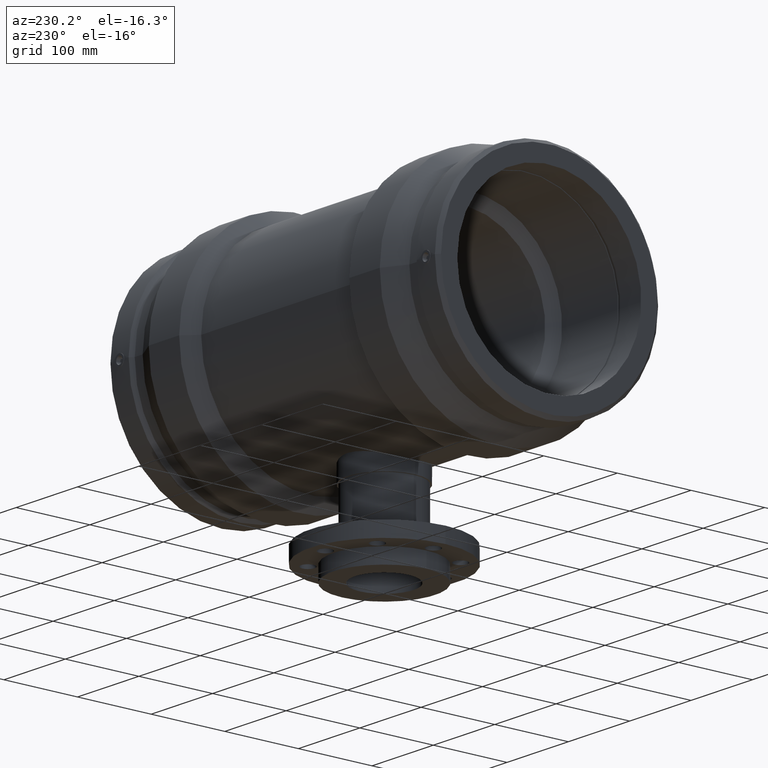
[diagram: clean part render]
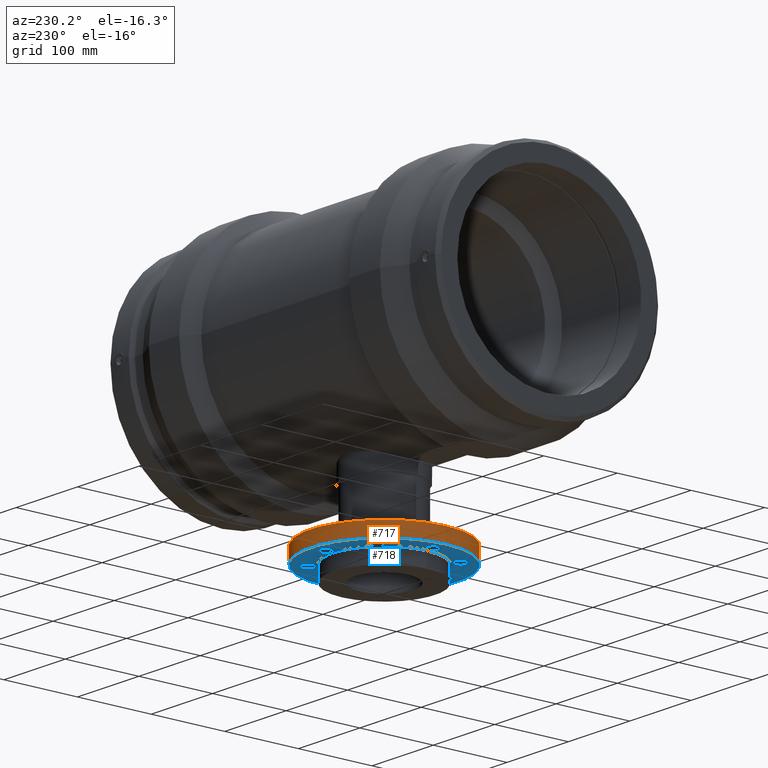
[diagram: same view with the hole feature highlighted: cylindrical wall and planar end face, labeled with their STEP entity ids]
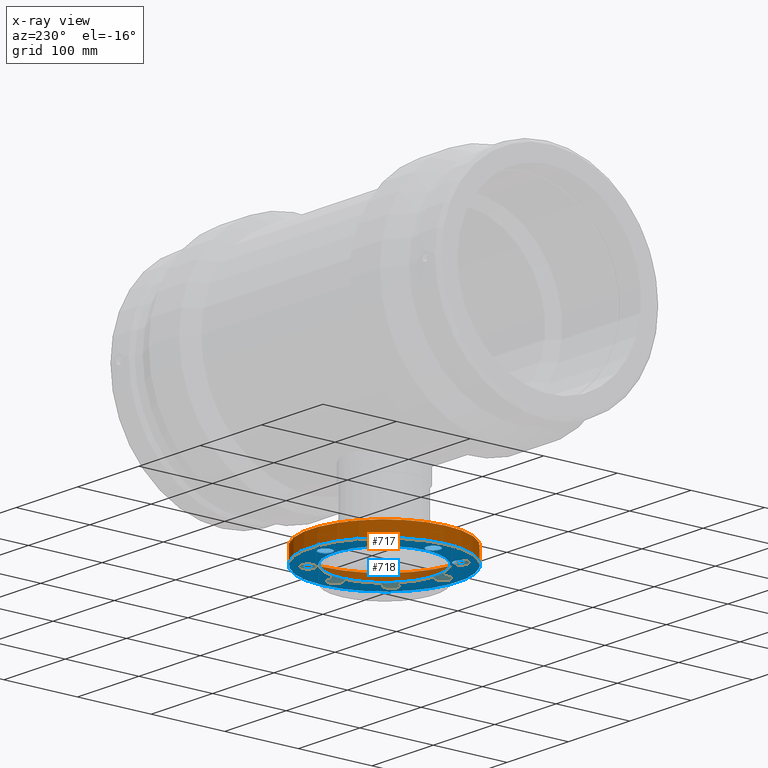
[diagram: x-ray of the same camera — body ghosted, the hole faces saturated]
A machine part, auxiliary view. The highlighted faces form one hole feature of diameter 200 mm: the cylindrical wall (entity #717, orange) and its adjacent planar end face (entity #718, blue) — they share a circular edge in the B-rep.
The next image is the same camera in x-ray (body ghosted, the hole faces saturated) — the bore reads through the body.
Wall:
#69=FACE_BOUND('',#319,.T.);
#145=CIRCLE('',#802,100.);
#146=CIRCLE('',#804,100.);
#198=CYLINDRICAL_SURFACE('',#803,100.);
#233=FACE_OUTER_BOUND('',#318,.T.);
#318=EDGE_LOOP('',(#604));
#319=EDGE_LOOP('',(#605));
#446=VERTEX_POINT('',#1534);
#447=VERTEX_POINT('',#1537);
#516=EDGE_CURVE('',#446,#446,#145,.T.);
#517=EDGE_CURVE('',#447,#447,#146,.T.);
#604=ORIENTED_EDGE('',*,*,#516,.T.);
#605=ORIENTED_EDGE('',*,*,#517,.F.);
#717=ADVANCED_FACE('',(#233,#69),#198,.T.);
#802=AXIS2_PLACEMENT_3D('',#1535,#969,#970);
#803=AXIS2_PLACEMENT_3D('',#1536,#971,#972);
#804=AXIS2_PLACEMENT_3D('',#1538,#973,#974);
#969=DIRECTION('center_axis',(-1.22464679914735E-16,0.,-1.));
#970=DIRECTION('ref_axis',(1.,0.,-1.22464679914735E-16));
#971=DIRECTION('center_axis',(-1.22464679914735E-16,0.,-1.));
#972=DIRECTION('ref_axis',(-1.,0.,0.));
#973=DIRECTION('center_axis',(-1.22464679914735E-16,0.,-1.));
#974=DIRECTION('ref_axis',(1.,0.,-1.22464679914735E-16));
#1534=CARTESIAN_POINT('',(-100.,0.,-230.));
#1535=CARTESIAN_POINT('Origin',(-2.81668763803891E-14,0.,-230.));
#1536=CARTESIAN_POINT('Origin',(-2.93915231795365E-14,0.,-240.));
#1537=CARTESIAN_POINT('',(-100.,0.,-250.));
#1538=CARTESIAN_POINT('Origin',(-3.06161699786838E-14,0.,-250.));
End face:
#33=PLANE('',#805);
#70=FACE_BOUND('',#321,.T.);
#71=FACE_BOUND('',#322,.T.);
#72=FACE_BOUND('',#323,.T.);
#73=FACE_BOUND('',#324,.T.);
#74=FACE_BOUND('',#325,.T.);
#75=FACE_BOUND('',#326,.T.);
#76=FACE_BOUND('',#327,.T.);
#77=FACE_BOUND('',#328,.T.);
#78=FACE_BOUND('',#329,.T.);
#122=CIRCLE('',#763,9.);
#124=CIRCLE('',#766,9.);
#126=CIRCLE('',#769,9.);
#128=CIRCLE('',#772,9.);
#130=CIRCLE('',#775,9.);
#132=CIRCLE('',#778,9.);
#134=CIRCLE('',#781,9.);
#136=CIRCLE('',#784,9.);
#143=CIRCLE('',#798,69.);
#146=CIRCLE('',#804,100.);
#234=FACE_OUTER_BOUND('',#320,.T.);
#320=EDGE_LOOP('',(#606));
#321=EDGE_LOOP('',(#607));
#322=EDGE_LOOP('',(#608));
#323=EDGE_LOOP('',(#609));
#324=EDGE_LOOP('',(#610));
#325=EDGE_LOOP('',(#611));
#326=EDGE_LOOP('',(#612));
#327=EDGE_LOOP('',(#613));
#328=EDGE_LOOP('',(#614));
#329=EDGE_LOOP('',(#615));
#422=VERTEX_POINT('',#1405);
#424=VERTEX_POINT('',#1410);
#426=VERTEX_POINT('',#1415);
#428=VERTEX_POINT('',#1420);
#430=VERTEX_POINT('',#1425);
#432=VERTEX_POINT('',#1430);
#434=VERTEX_POINT('',#1435);
#436=VERTEX_POINT('',#1440);
#444=VERTEX_POINT('',#1528);
#447=VERTEX_POINT('',#1537);
#492=EDGE_CURVE('',#422,#422,#122,.T.);
#494=EDGE_CURVE('',#424,#424,#124,.T.);
#496=EDGE_CURVE('',#426,#426,#126,.T.);
#498=EDGE_CURVE('',#428,#428,#128,.T.);
#500=EDGE_CURVE('',#430,#430,#130,.T.);
#502=EDGE_CURVE('',#432,#432,#132,.T.);
#504=EDGE_CURVE('',#434,#434,#134,.T.);
#506=EDGE_CURVE('',#436,#436,#136,.T.);
#514=EDGE_CURVE('',#444,#444,#143,.T.);
#517=EDGE_CURVE('',#447,#447,#146,.T.);
#606=ORIENTED_EDGE('',*,*,#517,.T.);
#607=ORIENTED_EDGE('',*,*,#492,.T.);
#608=ORIENTED_EDGE('',*,*,#494,.T.);
#609=ORIENTED_EDGE('',*,*,#496,.T.);
#610=ORIENTED_EDGE('',*,*,#498,.T.);
#611=ORIENTED_EDGE('',*,*,#500,.T.);
#612=ORIENTED_EDGE('',*,*,#502,.T.);
#613=ORIENTED_EDGE('',*,*,#504,.T.);
#614=ORIENTED_EDGE('',*,*,#506,.T.);
#615=ORIENTED_EDGE('',*,*,#514,.T.);
#718=ADVANCED_FACE('',(#234,#70,#71,#72,#73,#74,#75,#76,#77,#78),#33,.T.);
#763=AXIS2_PLACEMENT_3D('',#1406,#891,#892);
#766=AXIS2_PLACEMENT_3D('',#1411,#897,#898);
#769=AXIS2_PLACEMENT_3D('',#1416,#903,#904);
#772=AXIS2_PLACEMENT_3D('',#1421,#909,#910);
#775=AXIS2_PLACEMENT_3D('',#1426,#915,#916);
#778=AXIS2_PLACEMENT_3D('',#1431,#921,#922);
#781=AXIS2_PLACEMENT_3D('',#1436,#927,#928);
#784=AXIS2_PLACEMENT_3D('',#1441,#933,#934);
#798=AXIS2_PLACEMENT_3D('',#1529,#961,#962);
#804=AXIS2_PLACEMENT_3D('',#1538,#973,#974);
#805=AXIS2_PLACEMENT_3D('',#1539,#975,#976);
#891=DIRECTION('center_axis',(1.22464679914735E-16,0.,1.));
#892=DIRECTION('ref_axis',(0.707106781186547,0.707106781186548,0.));
#897=DIRECTION('center_axis',(1.22464679914735E-16,0.,1.));
#898=DIRECTION('ref_axis',(-1.2335811384724E-16,1.,0.));
#903=DIRECTION('center_axis',(1.22464679914735E-16,0.,1.));
#904=DIRECTION('ref_axis',(-0.707106781186548,0.707106781186547,0.));
#909=DIRECTION('center_axis',(1.22464679914735E-16,0.,1.));
#910=DIRECTION('ref_axis',(-1.,-1.2335811384724E-16,0.));
#915=DIRECTION('center_axis',(1.22464679914735E-16,0.,1.));
#916=DIRECTION('ref_axis',(-0.707106781186547,-0.707106781186548,0.));
#921=DIRECTION('center_axis',(1.22464679914735E-16,0.,1.));
#922=DIRECTION('ref_axis',(0.,-1.,0.));
#927=DIRECTION('center_axis',(1.22464679914735E-16,0.,1.));
#928=DIRECTION('ref_axis',(0.707106781186548,-0.707106781186547,0.));
#933=DIRECTION('center_axis',(1.22464679914735E-16,0.,1.));
#934=DIRECTION('ref_axis',(1.,0.,0.));
#961=DIRECTION('center_axis',(1.22464679914735E-16,0.,1.));
#962=DIRECTION('ref_axis',(-1.,0.,0.));
#973=DIRECTION('center_axis',(-1.22464679914735E-16,0.,-1.));
#974=DIRECTION('ref_axis',(1.,0.,-1.22464679914735E-16));
#975=DIRECTION('center_axis',(-1.22464679914735E-16,0.,-1.));
#976=DIRECTION('ref_axis',(-1.,0.,0.));
#1405=CARTESIAN_POINT('',(-62.9325035256027,-62.9325035256027,-250.));
#1406=CARTESIAN_POINT('Origin',(-56.5685424949238,-56.5685424949238,-250.));
#1410=CARTESIAN_POINT('',(-8.60857782988463E-15,-89.,-250.));
#1411=CARTESIAN_POINT('Origin',(-2.19312541253865E-14,-80.,-250.));
#1415=CARTESIAN_POINT('',(62.9325035256027,-62.9325035256027,-250.));
#1416=CARTESIAN_POINT('Origin',(56.5685424949238,-56.5685424949238,-250.));
#1420=CARTESIAN_POINT('',(89.,2.36259756353544E-14,-250.));
#1421=CARTESIAN_POINT('Origin',(80.,1.47441914383532E-14,-250.));
#1425=CARTESIAN_POINT('',(62.9325035256027,62.9325035256027,-250.));
#1426=CARTESIAN_POINT('Origin',(56.5685424949238,56.5685424949238,-250.));
#1430=CARTESIAN_POINT('',(-1.74903620268859E-14,89.,-250.));
#1431=CARTESIAN_POINT('Origin',(-2.63721462238871E-14,80.,-250.));
#1435=CARTESIAN_POINT('',(-62.9325035256028,62.9325035256027,-250.));
#1436=CARTESIAN_POINT('Origin',(-56.5685424949238,56.5685424949238,-250.));
#1440=CARTESIAN_POINT('',(-89.,1.10218211923262E-15,-250.));
#1441=CARTESIAN_POINT('Origin',(-80.,0.,-250.));
#1528=CARTESIAN_POINT('',(-69.,0.,-250.));
#1529=CARTESIAN_POINT('Origin',(-3.06161699786838E-14,0.,-250.));
#1537=CARTESIAN_POINT('',(-100.,0.,-250.));
#1538=CARTESIAN_POINT('Origin',(-3.06161699786838E-14,0.,-250.));
#1539=CARTESIAN_POINT('Origin',(-52.,0.,-250.));